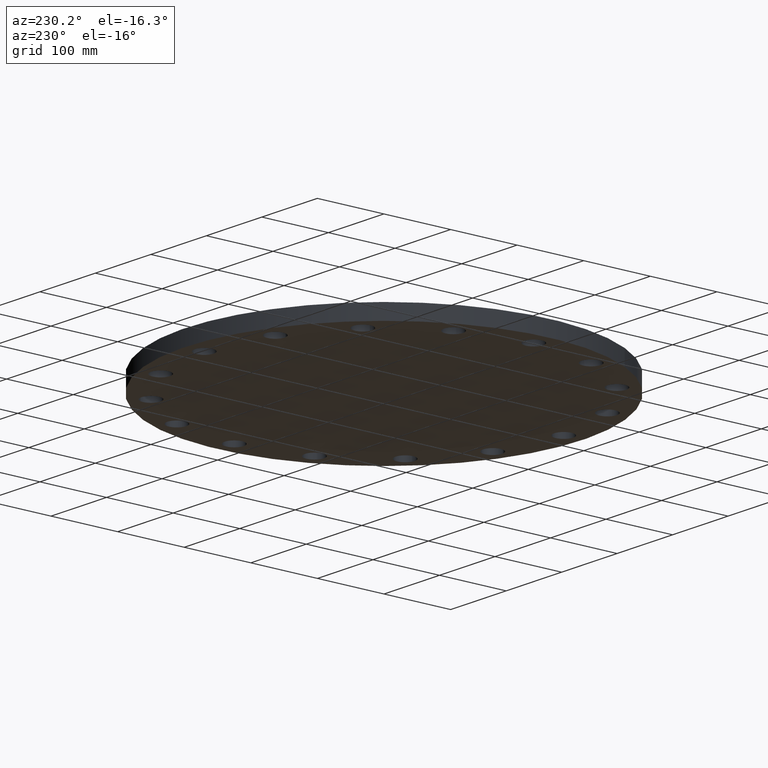
[diagram: clean part render]
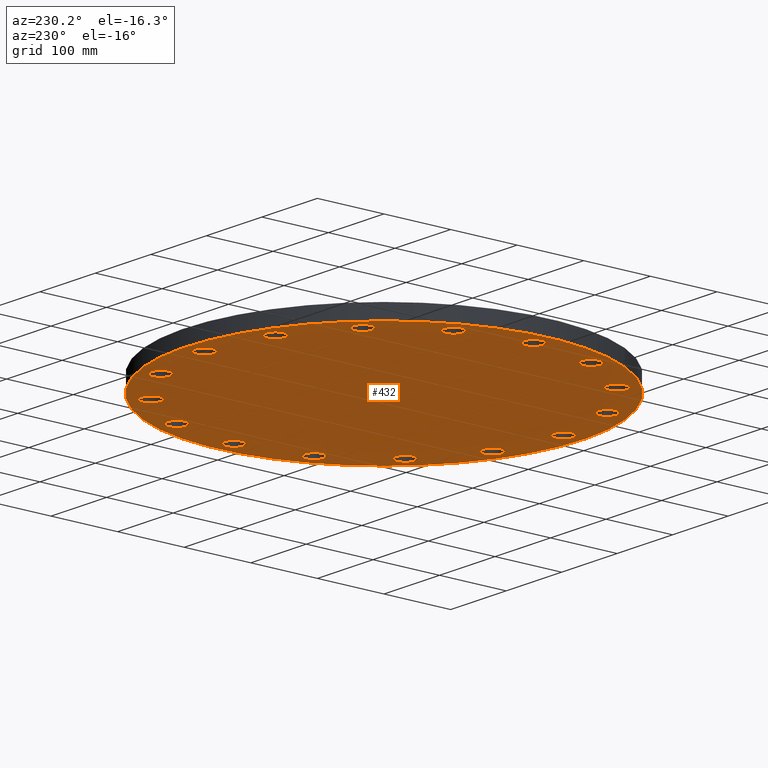
[diagram: same view with one face highlighted and labeled with its STEP entity id]
A machine part, auxiliary view. The second image highlights one B-rep face of the part: STEP entity #432.
In plain terms, the highlighted planar face has unit normal (0, 0, 1).
Its self-contained STEP definition (entity closure, byte-faithful):
#51=AXIS2_PLACEMENT_3D('Circle Axis2P3D',#49,#50,$) ;
#77=AXIS2_PLACEMENT_3D('Circle Axis2P3D',#75,#76,$) ;
#122=AXIS2_PLACEMENT_3D('Circle Axis2P3D',#120,#121,$) ;
#139=AXIS2_PLACEMENT_3D('Circle Axis2P3D',#137,#138,$) ;
#152=AXIS2_PLACEMENT_3D('Plane Axis2P3D',#149,#150,#151) ;
#164=AXIS2_PLACEMENT_3D('Circle Axis2P3D',#162,#163,$) ;
#173=AXIS2_PLACEMENT_3D('Circle Axis2P3D',#171,#172,$) ;
#182=AXIS2_PLACEMENT_3D('Circle Axis2P3D',#180,#181,$) ;
#191=AXIS2_PLACEMENT_3D('Circle Axis2P3D',#189,#190,$) ;
#200=AXIS2_PLACEMENT_3D('Circle Axis2P3D',#198,#199,$) ;
#209=AXIS2_PLACEMENT_3D('Circle Axis2P3D',#207,#208,$) ;
#218=AXIS2_PLACEMENT_3D('Circle Axis2P3D',#216,#217,$) ;
#227=AXIS2_PLACEMENT_3D('Circle Axis2P3D',#225,#226,$) ;
#236=AXIS2_PLACEMENT_3D('Circle Axis2P3D',#234,#235,$) ;
#245=AXIS2_PLACEMENT_3D('Circle Axis2P3D',#243,#244,$) ;
#254=AXIS2_PLACEMENT_3D('Circle Axis2P3D',#252,#253,$) ;
#263=AXIS2_PLACEMENT_3D('Circle Axis2P3D',#261,#262,$) ;
#272=AXIS2_PLACEMENT_3D('Circle Axis2P3D',#270,#271,$) ;
#281=AXIS2_PLACEMENT_3D('Circle Axis2P3D',#279,#280,$) ;
#290=AXIS2_PLACEMENT_3D('Circle Axis2P3D',#288,#289,$) ;
#299=AXIS2_PLACEMENT_3D('Circle Axis2P3D',#297,#298,$) ;
#308=AXIS2_PLACEMENT_3D('Circle Axis2P3D',#306,#307,$) ;
#317=AXIS2_PLACEMENT_3D('Circle Axis2P3D',#315,#316,$) ;
#326=AXIS2_PLACEMENT_3D('Circle Axis2P3D',#324,#325,$) ;
#335=AXIS2_PLACEMENT_3D('Circle Axis2P3D',#333,#334,$) ;
#344=AXIS2_PLACEMENT_3D('Circle Axis2P3D',#342,#343,$) ;
#353=AXIS2_PLACEMENT_3D('Circle Axis2P3D',#351,#352,$) ;
#362=AXIS2_PLACEMENT_3D('Circle Axis2P3D',#360,#361,$) ;
#371=AXIS2_PLACEMENT_3D('Circle Axis2P3D',#369,#370,$) ;
#380=AXIS2_PLACEMENT_3D('Circle Axis2P3D',#378,#379,$) ;
#389=AXIS2_PLACEMENT_3D('Circle Axis2P3D',#387,#388,$) ;
#398=AXIS2_PLACEMENT_3D('Circle Axis2P3D',#396,#397,$) ;
#407=AXIS2_PLACEMENT_3D('Circle Axis2P3D',#405,#406,$) ;
#416=AXIS2_PLACEMENT_3D('Circle Axis2P3D',#414,#415,$) ;
#425=AXIS2_PLACEMENT_3D('Circle Axis2P3D',#423,#424,$) ;
#44=CARTESIAN_POINT('Vertex',(10.131359809,0.269676865466,0.)) ;
#49=CARTESIAN_POINT('Axis2P3D Location',(10.625,0.,0.)) ;
#53=CARTESIAN_POINT('Vertex',(11.1186401911,-0.269676865466,0.)) ;
#75=CARTESIAN_POINT('Axis2P3D Location',(10.625,0.,0.)) ;
#101=CARTESIAN_POINT('Vertex',(10.3115951023,5.63325007862,0.)) ;
#117=CARTESIAN_POINT('Vertex',(-10.3115951023,-5.63325007862,0.)) ;
#120=CARTESIAN_POINT('Axis2P3D Location',(0.,0.,0.)) ;
#137=CARTESIAN_POINT('Axis2P3D Location',(0.,0.,0.)) ;
#149=CARTESIAN_POINT('Axis2P3D Location',(0.,0.,0.)) ;
#162=CARTESIAN_POINT('Axis2P3D Location',(9.81622003297,4.0660114689,0.)) ;
#166=CARTESIAN_POINT('Vertex',(9.25695509552,4.12625248262,0.)) ;
#168=CARTESIAN_POINT('Vertex',(10.3754849704,4.00577045517,0.)) ;
#171=CARTESIAN_POINT('Axis2P3D Location',(9.81622003297,4.0660114689,0.)) ;
#180=CARTESIAN_POINT('Axis2P3D Location',(7.51300955014,7.51300955014,0.)) ;
#184=CARTESIAN_POINT('Vertex',(6.97326288327,7.35464356387,0.)) ;
#186=CARTESIAN_POINT('Vertex',(8.05275621701,7.67137553641,0.)) ;
#189=CARTESIAN_POINT('Axis2P3D Location',(7.51300955014,7.51300955014,0.)) ;
#198=CARTESIAN_POINT('Axis2P3D Location',(4.0660114689,9.81622003297,0.)) ;
#202=CARTESIAN_POINT('Vertex',(3.62795460983,9.46335683253,0.)) ;
#204=CARTESIAN_POINT('Vertex',(4.50406832796,10.1690832334,0.)) ;
#207=CARTESIAN_POINT('Axis2P3D Location',(4.0660114689,9.81622003297,0.)) ;
#216=CARTESIAN_POINT('Axis2P3D Location',(-1.67844740731E-015,10.625,0.)) ;
#220=CARTESIAN_POINT('Vertex',(-0.269676865466,10.131359809,0.)) ;
#222=CARTESIAN_POINT('Vertex',(0.269676865466,11.1186401911,0.)) ;
#225=CARTESIAN_POINT('Axis2P3D Location',(-1.18890024684E-015,10.625,0.)) ;
#234=CARTESIAN_POINT('Axis2P3D Location',(-4.0660114689,9.81622003297,0.)) ;
#238=CARTESIAN_POINT('Vertex',(-4.12625248262,9.25695509552,0.)) ;
#240=CARTESIAN_POINT('Vertex',(-4.00577045517,10.3754849704,0.)) ;
#243=CARTESIAN_POINT('Axis2P3D Location',(-4.0660114689,9.81622003297,0.)) ;
#252=CARTESIAN_POINT('Axis2P3D Location',(-7.51300955014,7.51300955014,0.)) ;
#256=CARTESIAN_POINT('Vertex',(-7.35464356387,6.97326288327,0.)) ;
#258=CARTESIAN_POINT('Vertex',(-7.67137553641,8.05275621701,0.)) ;
#261=CARTESIAN_POINT('Axis2P3D Location',(-7.51300955014,7.51300955014,0.)) ;
#270=CARTESIAN_POINT('Axis2P3D Location',(-9.81622003297,4.0660114689,0.)) ;
#274=CARTESIAN_POINT('Vertex',(-9.46335683253,3.62795460983,0.)) ;
#276=CARTESIAN_POINT('Vertex',(-10.1690832334,4.50406832796,0.)) ;
#279=CARTESIAN_POINT('Axis2P3D Location',(-9.81622003297,4.0660114689,0.)) ;
#288=CARTESIAN_POINT('Axis2P3D Location',(-10.625,1.25883555548E-015,0.)) ;
#292=CARTESIAN_POINT('Vertex',(-10.131359809,-0.269676865466,0.)) ;
#294=CARTESIAN_POINT('Vertex',(-11.1186401911,0.269676865466,0.)) ;
#297=CARTESIAN_POINT('Axis2P3D Location',(-10.625,1.04902962957E-015,0.)) ;
#306=CARTESIAN_POINT('Axis2P3D Location',(-9.81622003297,-4.0660114689,0.)) ;
#310=CARTESIAN_POINT('Vertex',(-9.25695509552,-4.12625248262,0.)) ;
#312=CARTESIAN_POINT('Vertex',(-10.3754849704,-4.00577045517,0.)) ;
#315=CARTESIAN_POINT('Axis2P3D Location',(-9.81622003297,-4.0660114689,0.)) ;
#324=CARTESIAN_POINT('Axis2P3D Location',(-7.51300955014,-7.51300955014,0.)) ;
#328=CARTESIAN_POINT('Vertex',(-6.97326288327,-7.35464356387,0.)) ;
#330=CARTESIAN_POINT('Vertex',(-8.05275621701,-7.67137553641,0.)) ;
#333=CARTESIAN_POINT('Axis2P3D Location',(-7.51300955014,-7.51300955014,0.)) ;
#342=CARTESIAN_POINT('Axis2P3D Location',(-4.0660114689,-9.81622003297,0.)) ;
#346=CARTESIAN_POINT('Vertex',(-3.62795460983,-9.46335683253,0.)) ;
#348=CARTESIAN_POINT('Vertex',(-4.50406832796,-10.1690832334,0.)) ;
#351=CARTESIAN_POINT('Axis2P3D Location',(-4.0660114689,-9.81622003297,0.)) ;
#360=CARTESIAN_POINT('Axis2P3D Location',(-1.81831802458E-015,-10.625,0.)) ;
#364=CARTESIAN_POINT('Vertex',(0.269676865466,-10.131359809,0.)) ;
#366=CARTESIAN_POINT('Vertex',(-0.269676865466,-11.1186401911,0.)) ;
#369=CARTESIAN_POINT('Axis2P3D Location',(-2.51767111096E-015,-10.625,0.)) ;
#378=CARTESIAN_POINT('Axis2P3D Location',(4.0660114689,-9.81622003297,0.)) ;
#382=CARTESIAN_POINT('Vertex',(4.12625248262,-9.25695509552,0.)) ;
#384=CARTESIAN_POINT('Vertex',(4.00577045517,-10.3754849704,0.)) ;
#387=CARTESIAN_POINT('Axis2P3D Location',(4.0660114689,-9.81622003297,0.)) ;
#396=CARTESIAN_POINT('Axis2P3D Location',(7.51300955014,-7.51300955014,0.)) ;
#400=CARTESIAN_POINT('Vertex',(7.35464356387,-6.97326288327,0.)) ;
#402=CARTESIAN_POINT('Vertex',(7.67137553641,-8.05275621701,0.)) ;
#405=CARTESIAN_POINT('Axis2P3D Location',(7.51300955014,-7.51300955014,0.)) ;
#414=CARTESIAN_POINT('Axis2P3D Location',(9.81622003297,-4.0660114689,0.)) ;
#418=CARTESIAN_POINT('Vertex',(9.46335683253,-3.62795460983,0.)) ;
#420=CARTESIAN_POINT('Vertex',(10.1690832334,-4.50406832796,0.)) ;
#423=CARTESIAN_POINT('Axis2P3D Location',(9.81622003297,-4.0660114689,0.)) ;
#50=DIRECTION('Axis2P3D Direction',(0.,-0.,-0.0393700787402)) ;
#76=DIRECTION('Axis2P3D Direction',(0.,-0.,-0.0393700787402)) ;
#121=DIRECTION('Axis2P3D Direction',(0.,0.,0.0393700787402)) ;
#138=DIRECTION('Axis2P3D Direction',(0.,0.,0.0393700787402)) ;
#150=DIRECTION('Axis2P3D Direction',(0.,0.,0.0393700787402)) ;
#151=DIRECTION('Axis2P3D XDirection',(0.0393700787402,0.,0.)) ;
#163=DIRECTION('Axis2P3D Direction',(0.,0.,0.0393700787402)) ;
#172=DIRECTION('Axis2P3D Direction',(0.,0.,0.0393700787402)) ;
#181=DIRECTION('Axis2P3D Direction',(0.,0.,0.0393700787402)) ;
#190=DIRECTION('Axis2P3D Direction',(0.,0.,0.0393700787402)) ;
#199=DIRECTION('Axis2P3D Direction',(0.,0.,0.0393700787402)) ;
#208=DIRECTION('Axis2P3D Direction',(0.,0.,0.0393700787402)) ;
#217=DIRECTION('Axis2P3D Direction',(0.,0.,0.0393700787402)) ;
#226=DIRECTION('Axis2P3D Direction',(0.,0.,0.0393700787402)) ;
#235=DIRECTION('Axis2P3D Direction',(0.,0.,0.0393700787402)) ;
#244=DIRECTION('Axis2P3D Direction',(0.,0.,0.0393700787402)) ;
#253=DIRECTION('Axis2P3D Direction',(0.,0.,0.0393700787402)) ;
#262=DIRECTION('Axis2P3D Direction',(0.,0.,0.0393700787402)) ;
#271=DIRECTION('Axis2P3D Direction',(0.,0.,0.0393700787402)) ;
#280=DIRECTION('Axis2P3D Direction',(0.,0.,0.0393700787402)) ;
#289=DIRECTION('Axis2P3D Direction',(0.,0.,0.0393700787402)) ;
#298=DIRECTION('Axis2P3D Direction',(0.,0.,0.0393700787402)) ;
#307=DIRECTION('Axis2P3D Direction',(0.,0.,0.0393700787402)) ;
#316=DIRECTION('Axis2P3D Direction',(0.,0.,0.0393700787402)) ;
#325=DIRECTION('Axis2P3D Direction',(0.,0.,0.0393700787402)) ;
#334=DIRECTION('Axis2P3D Direction',(0.,0.,0.0393700787402)) ;
#343=DIRECTION('Axis2P3D Direction',(0.,0.,0.0393700787402)) ;
#352=DIRECTION('Axis2P3D Direction',(0.,0.,0.0393700787402)) ;
#361=DIRECTION('Axis2P3D Direction',(0.,0.,0.0393700787402)) ;
#370=DIRECTION('Axis2P3D Direction',(0.,0.,0.0393700787402)) ;
#379=DIRECTION('Axis2P3D Direction',(0.,0.,0.0393700787402)) ;
#388=DIRECTION('Axis2P3D Direction',(0.,0.,0.0393700787402)) ;
#397=DIRECTION('Axis2P3D Direction',(0.,0.,0.0393700787402)) ;
#406=DIRECTION('Axis2P3D Direction',(0.,0.,0.0393700787402)) ;
#415=DIRECTION('Axis2P3D Direction',(0.,0.,0.0393700787402)) ;
#424=DIRECTION('Axis2P3D Direction',(0.,0.,0.0393700787402)) ;
#155=ORIENTED_EDGE('',*,*,#124,.F.) ;
#156=ORIENTED_EDGE('',*,*,#141,.F.) ;
#159=ORIENTED_EDGE('',*,*,#55,.T.) ;
#160=ORIENTED_EDGE('',*,*,#79,.T.) ;
#177=ORIENTED_EDGE('',*,*,#170,.T.) ;
#178=ORIENTED_EDGE('',*,*,#175,.T.) ;
#195=ORIENTED_EDGE('',*,*,#188,.T.) ;
#196=ORIENTED_EDGE('',*,*,#193,.T.) ;
#213=ORIENTED_EDGE('',*,*,#206,.T.) ;
#214=ORIENTED_EDGE('',*,*,#211,.T.) ;
#231=ORIENTED_EDGE('',*,*,#224,.T.) ;
#232=ORIENTED_EDGE('',*,*,#229,.T.) ;
#249=ORIENTED_EDGE('',*,*,#242,.T.) ;
#250=ORIENTED_EDGE('',*,*,#247,.T.) ;
#267=ORIENTED_EDGE('',*,*,#260,.T.) ;
#268=ORIENTED_EDGE('',*,*,#265,.T.) ;
#285=ORIENTED_EDGE('',*,*,#278,.T.) ;
#286=ORIENTED_EDGE('',*,*,#283,.T.) ;
#303=ORIENTED_EDGE('',*,*,#296,.T.) ;
#304=ORIENTED_EDGE('',*,*,#301,.T.) ;
#321=ORIENTED_EDGE('',*,*,#314,.T.) ;
#322=ORIENTED_EDGE('',*,*,#319,.T.) ;
#339=ORIENTED_EDGE('',*,*,#332,.T.) ;
#340=ORIENTED_EDGE('',*,*,#337,.T.) ;
#357=ORIENTED_EDGE('',*,*,#350,.T.) ;
#358=ORIENTED_EDGE('',*,*,#355,.T.) ;
#375=ORIENTED_EDGE('',*,*,#368,.T.) ;
#376=ORIENTED_EDGE('',*,*,#373,.T.) ;
#393=ORIENTED_EDGE('',*,*,#386,.T.) ;
#394=ORIENTED_EDGE('',*,*,#391,.T.) ;
#411=ORIENTED_EDGE('',*,*,#404,.T.) ;
#412=ORIENTED_EDGE('',*,*,#409,.T.) ;
#429=ORIENTED_EDGE('',*,*,#422,.T.) ;
#430=ORIENTED_EDGE('',*,*,#427,.T.) ;
#161=FACE_BOUND('',#158,.T.) ;
#179=FACE_BOUND('',#176,.T.) ;
#197=FACE_BOUND('',#194,.T.) ;
#215=FACE_BOUND('',#212,.T.) ;
#233=FACE_BOUND('',#230,.T.) ;
#251=FACE_BOUND('',#248,.T.) ;
#269=FACE_BOUND('',#266,.T.) ;
#287=FACE_BOUND('',#284,.T.) ;
#305=FACE_BOUND('',#302,.T.) ;
#323=FACE_BOUND('',#320,.T.) ;
#341=FACE_BOUND('',#338,.T.) ;
#359=FACE_BOUND('',#356,.T.) ;
#377=FACE_BOUND('',#374,.T.) ;
#395=FACE_BOUND('',#392,.T.) ;
#413=FACE_BOUND('',#410,.T.) ;
#431=FACE_BOUND('',#428,.T.) ;
#432=ADVANCED_FACE('PartBody',(#157,#161,#179,#197,#215,#233,#251,#269,#287,#305,#323,#341,#359,#377,#395,#413,#431),#153,.F.) ;
#52=CIRCLE('generated circle',#51,0.562500000002) ;
#78=CIRCLE('generated circle',#77,0.562500000002) ;
#123=CIRCLE('generated circle',#122,11.75) ;
#140=CIRCLE('generated circle',#139,11.75) ;
#165=CIRCLE('generated circle',#164,0.562500000002) ;
#174=CIRCLE('generated circle',#173,0.562500000002) ;
#183=CIRCLE('generated circle',#182,0.562500000002) ;
#192=CIRCLE('generated circle',#191,0.562500000002) ;
#201=CIRCLE('generated circle',#200,0.562500000002) ;
#210=CIRCLE('generated circle',#209,0.562500000002) ;
#219=CIRCLE('generated circle',#218,0.562500000002) ;
#228=CIRCLE('generated circle',#227,0.562500000002) ;
#237=CIRCLE('generated circle',#236,0.562500000002) ;
#246=CIRCLE('generated circle',#245,0.562500000002) ;
#255=CIRCLE('generated circle',#254,0.562500000002) ;
#264=CIRCLE('generated circle',#263,0.562500000002) ;
#273=CIRCLE('generated circle',#272,0.562500000002) ;
#282=CIRCLE('generated circle',#281,0.562500000002) ;
#291=CIRCLE('generated circle',#290,0.562500000002) ;
#300=CIRCLE('generated circle',#299,0.562500000002) ;
#309=CIRCLE('generated circle',#308,0.562500000002) ;
#318=CIRCLE('generated circle',#317,0.562500000002) ;
#327=CIRCLE('generated circle',#326,0.562500000002) ;
#336=CIRCLE('generated circle',#335,0.562500000002) ;
#345=CIRCLE('generated circle',#344,0.562500000002) ;
#354=CIRCLE('generated circle',#353,0.562500000002) ;
#363=CIRCLE('generated circle',#362,0.562500000002) ;
#372=CIRCLE('generated circle',#371,0.562500000002) ;
#381=CIRCLE('generated circle',#380,0.562500000002) ;
#390=CIRCLE('generated circle',#389,0.562500000002) ;
#399=CIRCLE('generated circle',#398,0.562500000002) ;
#408=CIRCLE('generated circle',#407,0.562500000002) ;
#417=CIRCLE('generated circle',#416,0.562500000002) ;
#426=CIRCLE('generated circle',#425,0.562500000002) ;
#55=EDGE_CURVE('',#54,#45,#52,.F.) ;
#79=EDGE_CURVE('',#45,#54,#78,.F.) ;
#124=EDGE_CURVE('',#118,#102,#123,.T.) ;
#141=EDGE_CURVE('',#102,#118,#140,.T.) ;
#170=EDGE_CURVE('',#167,#169,#165,.T.) ;
#175=EDGE_CURVE('',#169,#167,#174,.T.) ;
#188=EDGE_CURVE('',#185,#187,#183,.T.) ;
#193=EDGE_CURVE('',#187,#185,#192,.T.) ;
#206=EDGE_CURVE('',#203,#205,#201,.T.) ;
#211=EDGE_CURVE('',#205,#203,#210,.T.) ;
#224=EDGE_CURVE('',#221,#223,#219,.T.) ;
#229=EDGE_CURVE('',#223,#221,#228,.T.) ;
#242=EDGE_CURVE('',#239,#241,#237,.T.) ;
#247=EDGE_CURVE('',#241,#239,#246,.T.) ;
#260=EDGE_CURVE('',#257,#259,#255,.T.) ;
#265=EDGE_CURVE('',#259,#257,#264,.T.) ;
#278=EDGE_CURVE('',#275,#277,#273,.T.) ;
#283=EDGE_CURVE('',#277,#275,#282,.T.) ;
#296=EDGE_CURVE('',#293,#295,#291,.T.) ;
#301=EDGE_CURVE('',#295,#293,#300,.T.) ;
#314=EDGE_CURVE('',#311,#313,#309,.T.) ;
#319=EDGE_CURVE('',#313,#311,#318,.T.) ;
#332=EDGE_CURVE('',#329,#331,#327,.T.) ;
#337=EDGE_CURVE('',#331,#329,#336,.T.) ;
#350=EDGE_CURVE('',#347,#349,#345,.T.) ;
#355=EDGE_CURVE('',#349,#347,#354,.T.) ;
#368=EDGE_CURVE('',#365,#367,#363,.T.) ;
#373=EDGE_CURVE('',#367,#365,#372,.T.) ;
#386=EDGE_CURVE('',#383,#385,#381,.T.) ;
#391=EDGE_CURVE('',#385,#383,#390,.T.) ;
#404=EDGE_CURVE('',#401,#403,#399,.T.) ;
#409=EDGE_CURVE('',#403,#401,#408,.T.) ;
#422=EDGE_CURVE('',#419,#421,#417,.T.) ;
#427=EDGE_CURVE('',#421,#419,#426,.T.) ;
#154=EDGE_LOOP('',(#155,#156)) ;
#158=EDGE_LOOP('',(#159,#160)) ;
#176=EDGE_LOOP('',(#177,#178)) ;
#194=EDGE_LOOP('',(#195,#196)) ;
#212=EDGE_LOOP('',(#213,#214)) ;
#230=EDGE_LOOP('',(#231,#232)) ;
#248=EDGE_LOOP('',(#249,#250)) ;
#266=EDGE_LOOP('',(#267,#268)) ;
#284=EDGE_LOOP('',(#285,#286)) ;
#302=EDGE_LOOP('',(#303,#304)) ;
#320=EDGE_LOOP('',(#321,#322)) ;
#338=EDGE_LOOP('',(#339,#340)) ;
#356=EDGE_LOOP('',(#357,#358)) ;
#374=EDGE_LOOP('',(#375,#376)) ;
#392=EDGE_LOOP('',(#393,#394)) ;
#410=EDGE_LOOP('',(#411,#412)) ;
#428=EDGE_LOOP('',(#429,#430)) ;
#157=FACE_OUTER_BOUND('',#154,.T.) ;
#153=PLANE('',#152) ;
#45=VERTEX_POINT('',#44) ;
#54=VERTEX_POINT('',#53) ;
#102=VERTEX_POINT('',#101) ;
#118=VERTEX_POINT('',#117) ;
#167=VERTEX_POINT('',#166) ;
#169=VERTEX_POINT('',#168) ;
#185=VERTEX_POINT('',#184) ;
#187=VERTEX_POINT('',#186) ;
#203=VERTEX_POINT('',#202) ;
#205=VERTEX_POINT('',#204) ;
#221=VERTEX_POINT('',#220) ;
#223=VERTEX_POINT('',#222) ;
#239=VERTEX_POINT('',#238) ;
#241=VERTEX_POINT('',#240) ;
#257=VERTEX_POINT('',#256) ;
#259=VERTEX_POINT('',#258) ;
#275=VERTEX_POINT('',#274) ;
#277=VERTEX_POINT('',#276) ;
#293=VERTEX_POINT('',#292) ;
#295=VERTEX_POINT('',#294) ;
#311=VERTEX_POINT('',#310) ;
#313=VERTEX_POINT('',#312) ;
#329=VERTEX_POINT('',#328) ;
#331=VERTEX_POINT('',#330) ;
#347=VERTEX_POINT('',#346) ;
#349=VERTEX_POINT('',#348) ;
#365=VERTEX_POINT('',#364) ;
#367=VERTEX_POINT('',#366) ;
#383=VERTEX_POINT('',#382) ;
#385=VERTEX_POINT('',#384) ;
#401=VERTEX_POINT('',#400) ;
#403=VERTEX_POINT('',#402) ;
#419=VERTEX_POINT('',#418) ;
#421=VERTEX_POINT('',#420) ;